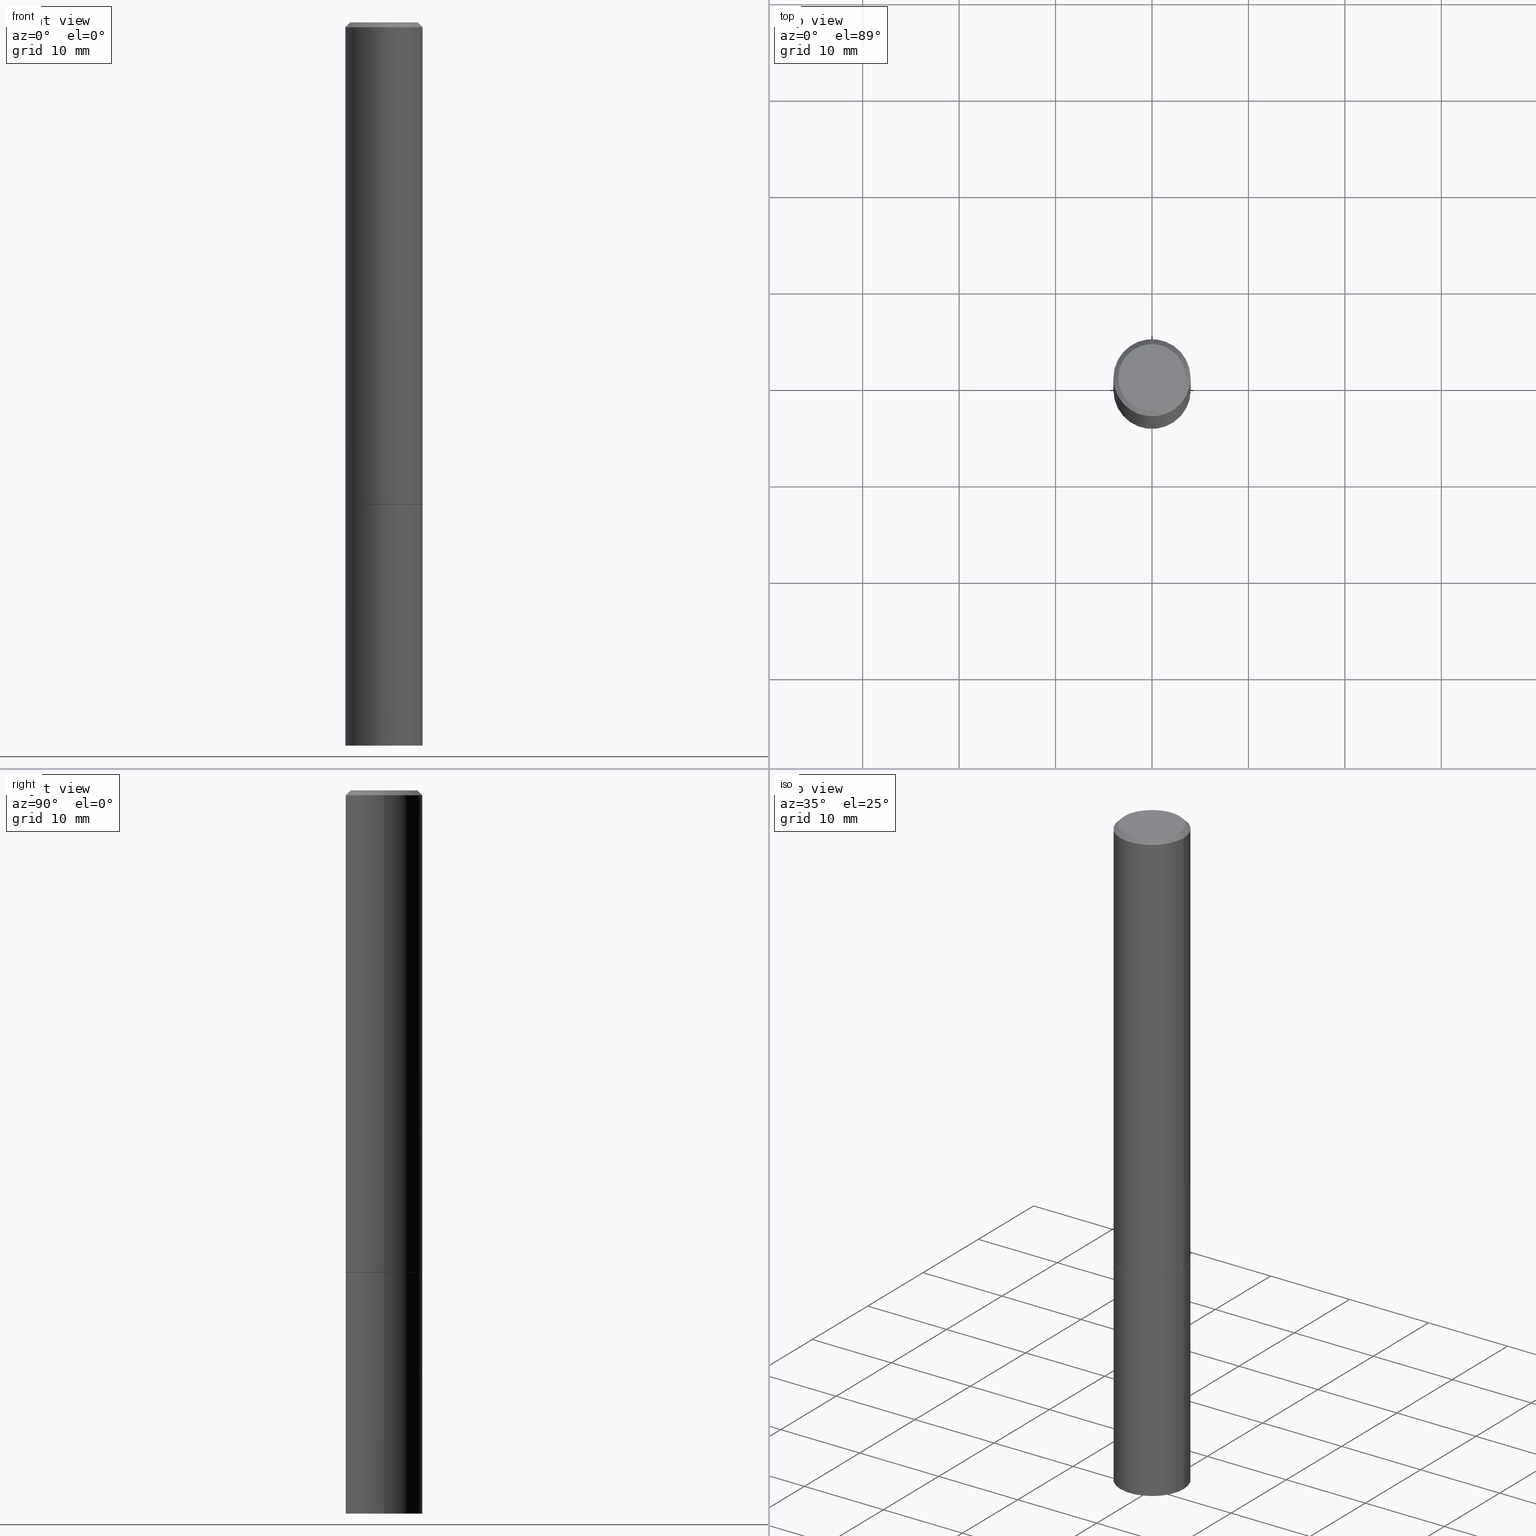
[diagram: canonical four-view strip — front | top / right | iso, engineering-drawing reading convention]
A machine part, canonical four-view strip (front | top / right | iso — engineering-drawing reading convention). The complete STEP part file that produces these views, byte-faithful:
ISO-10303-21;
HEADER;
FILE_DESCRIPTION (( 'STEP AP203' ),
    '1' );
FILE_NAME ('49392.STEP',
    '2024-02-28T18:36:48',
    ( '' ),
    ( '' ),
    'SwSTEP 2.0',
    'SolidWorks 2023',
    '' );
FILE_SCHEMA (( 'CONFIG_CONTROL_DESIGN' ));
ENDSEC;

DATA;
#1 = DIRECTION ( 'NONE',  ( 1.000000000000000000, -6.982962677686265922E-15, 4.876176775795935232E-29 ) ) ;
#2 = LOCAL_TIME ( 13, 36, 48.00000000000000000, #238 ) ;
#3 =( NAMED_UNIT ( * ) SI_UNIT ( $, .STERADIAN. ) SOLID_ANGLE_UNIT ( ) );
#4 = CARTESIAN_POINT ( 'NONE',  ( -0.1574999999999998901, 1.119104808822157012E-15, -7.747322767151471379E-30 ) ) ;
#5 = CIRCLE ( 'NONE', #82, 0.1565000000000000002 ) ;
#6 = VERTEX_POINT ( 'NONE', #175 ) ;
#7 = CARTESIAN_POINT ( 'NONE',  ( 1.099816621735634812E-15, 0.1574999999999931177, -1.968500000000000361 ) ) ;
#8 = CC_DESIGN_PERSON_AND_ORGANIZATION_ASSIGNMENT ( #245, #183, ( #179 ) ) ;
#9 = VERTEX_POINT ( 'NONE', #46 ) ;
#10 = CALENDAR_DATE ( 2024, 28, 2 ) ;
#11 = EDGE_CURVE ( 'NONE', #282, #355, #236, .T. ) ;
#12 = AXIS2_PLACEMENT_3D ( 'NONE', #243, #133, #357 ) ;
#13 = CARTESIAN_POINT ( 'NONE',  ( 4.890937612370280165E-31, -6.982962677686301470E-17, -0.02000000000000003164 ) ) ;
#14 = ORIENTED_EDGE ( 'NONE', *, *, #43, .T. ) ;
#15 = APPLICATION_PROTOCOL_DEFINITION ( 'international standard', 'config_control_design', 1994, #269 ) ;
#16 = FACE_OUTER_BOUND ( 'NONE', #204, .T. ) ;
#17 = APPROVAL_ROLE ( '' ) ;
#18 = VERTEX_POINT ( 'NONE', #74 ) ;
#19 = ADVANCED_FACE ( 'NONE', ( #16 ), #68, .T. ) ;
#20 = CLOSED_SHELL ( 'NONE', ( #165, #19, #235, #277, #317, #135, #280, #344 ) ) ;
#21 = AXIS2_PLACEMENT_3D ( 'NONE', #340, #167, #64 ) ;
#22 = CARTESIAN_POINT ( 'NONE',  ( 1.099816621735659069E-15, 0.1574999999999896760, -2.952800000000000313 ) ) ;
#23 = ORIENTED_EDGE ( 'NONE', *, *, #296, .F. ) ;
#24 = DATE_AND_TIME ( #10, #310 ) ;
#25 = CARTESIAN_POINT ( 'NONE',  ( 4.813905344975440714E-29, -6.872981015512730918E-15, -1.968499999999999694 ) ) ;
#26 = LINE ( 'NONE', #114, #40 ) ;
#27 = EDGE_CURVE ( 'NONE', #9, #42, #5, .T. ) ;
#28 = AXIS2_PLACEMENT_3D ( 'NONE', #22, #131, #337 ) ;
#29 = DIRECTION ( 'NONE',  ( 1.000000000000000000, -6.982962677686267499E-15, 0.000000000000000000 ) ) ;
#30 = CARTESIAN_POINT ( 'NONE',  ( 0.1575000000000000011, -1.140946271907162522E-14, -2.952799999999999869 ) ) ;
#31 = CIRCLE ( 'NONE', #239, 0.1575000000000000011 ) ;
#32 = AXIS2_PLACEMENT_3D ( 'NONE', #110, #213, #328 ) ;
#33 = EDGE_CURVE ( 'NONE', #6, #146, #216, .T. ) ;
#34 = AXIS2_PLACEMENT_3D ( 'NONE', #366, #335, #56 ) ;
#35 = FACE_OUTER_BOUND ( 'NONE', #71, .T. ) ;
#36 = EDGE_CURVE ( 'NONE', #282, #108, #193, .T. ) ;
#37 = CARTESIAN_POINT ( 'NONE',  ( 9.601573681818600950E-16, 0.1374999999999997891, -4.779444278458816091E-16 ) ) ;
#38 = DIRECTION ( 'NONE',  ( -2.445468806185136597E-29, 3.491481338843145583E-15, 1.000000000000000000 ) ) ;
#39 = VERTEX_POINT ( 'NONE', #152 ) ;
#40 = VECTOR ( 'NONE', #333, 39.37007874015748143 ) ;
#41 = AXIS2_PLACEMENT_3D ( 'NONE', #192, #188, #185 ) ;
#42 = VERTEX_POINT ( 'NONE', #262 ) ;
#43 = EDGE_CURVE ( 'NONE', #39, #6, #240, .T. ) ;
#44 = ORIENTED_EDGE ( 'NONE', *, *, #87, .F. ) ;
#45 = PERSON_AND_ORGANIZATION ( #53, #294 ) ;
#46 = CARTESIAN_POINT ( 'NONE',  ( 0.1565000000000000002, -7.965814674570632384E-15, -1.968499999999999694 ) ) ;
#47 = ORIENTED_EDGE ( 'NONE', *, *, #196, .T. ) ;
#48 = PERSON_AND_ORGANIZATION ( #53, #294 ) ;
#49 = ORIENTED_EDGE ( 'NONE', *, *, #120, .T. ) ;
#50 = VECTOR ( 'NONE', #313, 39.37007874015748143 ) ;
#51 = AXIS2_PLACEMENT_3D ( 'NONE', #169, #123, #227 ) ;
#52 = FACE_OUTER_BOUND ( 'NONE', #334, .T. ) ;
#53 = PERSON ( 'UNSPECIFIED', 'UNSPECIFIED', 'UNSPECIFIED', ('UNSPECIFIED'), ('UNSPECIFIED'), ('UNSPECIFIED') ) ;
#54 = PLANE ( 'NONE',  #302 ) ;
#55 = ORIENTED_EDGE ( 'NONE', *, *, #197, .F. ) ;
#56 = DIRECTION ( 'NONE',  ( 1.000000000000000000, -6.982962677686267499E-15, 4.876173381029107889E-29 ) ) ;
#57 = CARTESIAN_POINT ( 'NONE',  ( -0.1565000000000000002, -5.760981634048174323E-15, -1.968499999999999694 ) ) ;
#58 = ORIENTED_EDGE ( 'NONE', *, *, #303, .F. ) ;
#59 = APPLICATION_CONTEXT ( 'configuration controlled 3d designs of mechanical parts and assemblies' ) ;
#60 = DIRECTION ( 'NONE',  ( 0.000000000000000000, 0.000000000000000000, 1.000000000000000000 ) ) ;
#61 = CC_DESIGN_PERSON_AND_ORGANIZATION_ASSIGNMENT ( #159, #329, ( #162 ) ) ;
#62 = DIRECTION ( 'NONE',  ( -2.445468806185136597E-29, 3.491481338843145583E-15, 1.000000000000000000 ) ) ;
#63 = CIRCLE ( 'NONE', #345, 0.1565000000000000002 ) ;
#64 = DIRECTION ( 'NONE',  ( 1.000000000000000000, -6.982962677686266711E-15, 4.876176775795935793E-29 ) ) ;
#65 = APPROVAL_PERSON_ORGANIZATION ( #205, #81, #17 ) ;
#66 = CARTESIAN_POINT ( 'NONE',  ( 4.811459876169255671E-29, -6.869489534173887122E-15, -1.967499999999999805 ) ) ;
#67 = EDGE_LOOP ( 'NONE', ( #148, #104 ) ) ;
#68 = CYLINDRICAL_SURFACE ( 'NONE', #125, 0.1574999999999998901 ) ;
#69 = ORIENTED_EDGE ( 'NONE', *, *, #196, .F. ) ;
#70 = EDGE_CURVE ( 'NONE', #146, #6, #140, .T. ) ;
#71 = EDGE_LOOP ( 'NONE', ( #233, #314 ) ) ;
#72 = COORDINATED_UNIVERSAL_TIME_OFFSET ( 5, 0, .BEHIND. ) ;
#73 = CIRCLE ( 'NONE', #32, 0.1374999999999997891 ) ;
#74 = CARTESIAN_POINT ( 'NONE',  ( 0.1374999999999997891, -1.046838268059730914E-15, 4.268512490107428597E-18 ) ) ;
#75 = ORIENTED_EDGE ( 'NONE', *, *, #358, .F. ) ;
#76 = DATE_TIME_ROLE ( 'creation_date' ) ;
#77 = ORIENTED_EDGE ( 'NONE', *, *, #27, .T. ) ;
#78 = CARTESIAN_POINT ( 'NONE',  ( -0.1575000000000000011, -2.350554771653214846E-15, -1.967499999999999805 ) ) ;
#79 = ORIENTED_EDGE ( 'NONE', *, *, #36, .T. ) ;
#80 = CALENDAR_DATE ( 2024, 28, 2 ) ;
#81 = APPROVAL ( #319, 'UNSPECIFIED' ) ;
#82 = AXIS2_PLACEMENT_3D ( 'NONE', #258, #147, #95 ) ;
#83 = PRODUCT_DEFINITION ( 'UNKNOWN', '', #116, #129 ) ;
#84 = DIRECTION ( 'NONE',  ( -0.7071067811865232589, 7.493145998870265808E-15, 0.7071067811865715536 ) ) ;
#85 = CARTESIAN_POINT ( 'NONE',  ( 0.1574999999999997791, -1.150358061425877894E-15, -0.02000000000000003164 ) ) ;
#86 = LINE ( 'NONE', #248, #320 ) ;
#87 = EDGE_CURVE ( 'NONE', #259, #284, #31, .T. ) ;
#88 = CIRCLE ( 'NONE', #136, 0.1575000000000000011 ) ;
#89 = FACE_OUTER_BOUND ( 'NONE', #244, .T. ) ;
#90 = ADVANCED_FACE ( 'NONE', ( #35 ), #145, .F. ) ;
#91 = DIRECTION ( 'NONE',  ( -2.445468806185136877E-29, 3.491481338843145188E-15, 1.000000000000000000 ) ) ;
#92 = FACE_OUTER_BOUND ( 'NONE', #348, .T. ) ;
#93 = AXIS2_PLACEMENT_3D ( 'NONE', #272, #293, #1 ) ;
#94 = APPROVAL_PERSON_ORGANIZATION ( #48, #307, #186 ) ;
#95 = DIRECTION ( 'NONE',  ( 1.000000000000000000, -6.982962677686267499E-15, 0.000000000000000000 ) ) ;
#96 = AXIS2_PLACEMENT_3D ( 'NONE', #288, #200, #311 ) ;
#97 = CIRCLE ( 'NONE', #365, 0.1575000000000000011 ) ;
#98 = PERSON_AND_ORGANIZATION_ROLE ( 'creator' ) ;
#99 = EDGE_CURVE ( 'NONE', #39, #18, #301, .T. ) ;
#100 = ORIENTED_EDGE ( 'NONE', *, *, #202, .F. ) ;
#101 = ORIENTED_EDGE ( 'NONE', *, *, #33, .F. ) ;
#102 = COORDINATED_UNIVERSAL_TIME_OFFSET ( 5, 0, .BEHIND. ) ;
#103 = ORIENTED_EDGE ( 'NONE', *, *, #70, .T. ) ;
#104 = ORIENTED_EDGE ( 'NONE', *, *, #291, .F. ) ;
#105 = DATE_AND_TIME ( #211, #228 ) ;
#106 = CONICAL_SURFACE ( 'NONE', #12, 0.1574999999999997791, 0.7853981633974472798 ) ;
#107 = DIRECTION ( 'NONE',  ( -0.7071067811865467956, 2.468850131082249172E-15, -0.7071067811865482389 ) ) ;
#108 = VERTEX_POINT ( 'NONE', #163 ) ;
#109 = PERSON_AND_ORGANIZATION ( #53, #294 ) ;
#110 = CARTESIAN_POINT ( 'NONE',  ( -1.043851414335219820E-46, 1.490343170380447200E-32, 4.268512490100411279E-18 ) ) ;
#111 = CALENDAR_DATE ( 2024, 28, 2 ) ;
#112 = DIMENSIONAL_EXPONENTS ( 1.000000000000000000, 0.000000000000000000, 0.000000000000000000, 0.000000000000000000, 0.000000000000000000, 0.000000000000000000, 0.000000000000000000 ) ;
#113 = EDGE_CURVE ( 'NONE', #108, #182, #86, .T. ) ;
#114 = CARTESIAN_POINT ( 'NONE',  ( 0.1574999999999998901, -1.099816621735586297E-15, 7.679978421878593829E-30 ) ) ;
#115 = AXIS2_PLACEMENT_3D ( 'NONE', #137, #118, #219 ) ;
#116 = PRODUCT_DEFINITION_FORMATION_WITH_SPECIFIED_SOURCE ( 'ANY', '', #179, .NOT_KNOWN. ) ;
#117 = CYLINDRICAL_SURFACE ( 'NONE', #41, 0.1575000000000000011 ) ;
#118 = DIRECTION ( 'NONE',  ( -2.445468806185136597E-29, 3.491481338843145583E-15, 1.000000000000000000 ) ) ;
#119 = CARTESIAN_POINT ( 'NONE',  ( 0.1574999999999997791, -1.150358061425877894E-15, -0.02000000000000003164 ) ) ;
#120 = EDGE_CURVE ( 'NONE', #42, #9, #63, .T. ) ;
#121 = CARTESIAN_POINT ( 'NONE',  ( 0.000000000000000000, 0.000000000000000000, 0.000000000000000000 ) ) ;
#122 = DIRECTION ( 'NONE',  ( -1.000000000000000000, 6.982962677686265922E-15, -4.876176775795935793E-29 ) ) ;
#123 = DIRECTION ( 'NONE',  ( -2.445468806185136597E-29, 3.491481338843145583E-15, 1.000000000000000000 ) ) ;
#124 =( NAMED_UNIT ( * ) PLANE_ANGLE_UNIT ( ) SI_UNIT ( $, .RADIAN. ) );
#125 = AXIS2_PLACEMENT_3D ( 'NONE', #283, #38, #181 ) ;
#126 = CARTESIAN_POINT ( 'NONE',  ( 0.1575000000000000011, -7.969306155909475391E-15, -1.967499999999999805 ) ) ;
#127 = CC_DESIGN_APPROVAL ( #184, ( #83 ) ) ;
#128 = PERSON_AND_ORGANIZATION_ROLE ( 'design_supplier' ) ;
#129 = DESIGN_CONTEXT ( 'detailed design', #269, 'design' ) ;
#130 = ORIENTED_EDGE ( 'NONE', *, *, #113, .F. ) ;
#131 = DIRECTION ( 'NONE',  ( 2.438088387897960049E-29, -3.491481338843145188E-15, -1.000000000000000000 ) ) ;
#132 = ORIENTED_EDGE ( 'NONE', *, *, #255, .T. ) ;
#133 = DIRECTION ( 'NONE',  ( 2.445468806185136597E-29, -3.491481338843145583E-15, -1.000000000000000000 ) ) ;
#134 = CARTESIAN_POINT ( 'NONE',  ( 4.813905344975440714E-29, -6.872981015512730918E-15, -1.968499999999999694 ) ) ;
#135 = ADVANCED_FACE ( 'NONE', ( #361 ), #330, .T. ) ;
#136 = AXIS2_PLACEMENT_3D ( 'NONE', #134, #154, #195 ) ;
#137 = CARTESIAN_POINT ( 'NONE',  ( 4.813905344975440714E-29, -6.872981015512730918E-15, -1.968499999999999694 ) ) ;
#138 = FACE_OUTER_BOUND ( 'NONE', #208, .T. ) ;
#139 = CYLINDRICAL_SURFACE ( 'NONE', #21, 0.1574999999999998901 ) ;
#140 = CIRCLE ( 'NONE', #96, 0.1574999999999997791 ) ;
#141 = CIRCLE ( 'NONE', #51, 0.1575000000000000011 ) ;
#142 = CC_DESIGN_DATE_AND_TIME_ASSIGNMENT ( #234, #76, ( #83 ) ) ;
#143 = CIRCLE ( 'NONE', #343, 0.1575000000000000011 ) ;
#144 = ADVANCED_FACE ( 'NONE', ( #160 ), #117, .T. ) ;
#145 = PLANE ( 'NONE',  #292 ) ;
#146 = VERTEX_POINT ( 'NONE', #85 ) ;
#147 = DIRECTION ( 'NONE',  ( -2.445468806185136597E-29, 3.491481338843145583E-15, 1.000000000000000000 ) ) ;
#148 = ORIENTED_EDGE ( 'NONE', *, *, #36, .F. ) ;
#149 = DIRECTION ( 'NONE',  ( -2.445468806185136597E-29, 3.491481338843145583E-15, 1.000000000000000000 ) ) ;
#150 = ORIENTED_EDGE ( 'NONE', *, *, #358, .T. ) ;
#151 = DATE_TIME_ROLE ( 'classification_date' ) ;
#152 = CARTESIAN_POINT ( 'NONE',  ( -0.1374999999999997891, 9.950721815702913496E-16, 4.268512490093574228E-18 ) ) ;
#153 = EDGE_LOOP ( 'NONE', ( #100, #49, #155, #44 ) ) ;
#154 = DIRECTION ( 'NONE',  ( -2.445468806185136597E-29, 3.491481338843145583E-15, 1.000000000000000000 ) ) ;
#155 = ORIENTED_EDGE ( 'NONE', *, *, #308, .T. ) ;
#156 = CLOSED_SHELL ( 'NONE', ( #191, #230, #90, #144 ) ) ;
#157 = DIRECTION ( 'NONE',  ( 2.438088387897960049E-29, -3.491481338843145188E-15, -1.000000000000000000 ) ) ;
#158 = PRODUCT_RELATED_PRODUCT_CATEGORY ( 'detail', '', ( #179 ) ) ;
#159 = PERSON_AND_ORGANIZATION ( #53, #294 ) ;
#160 = FACE_OUTER_BOUND ( 'NONE', #178, .T. ) ;
#161 = DIRECTION ( 'NONE',  ( -2.445468806185136877E-29, 3.491481338843145188E-15, 1.000000000000000000 ) ) ;
#162 = SECURITY_CLASSIFICATION ( '', '', #214 ) ;
#163 = CARTESIAN_POINT ( 'NONE',  ( -0.1575000000000000011, -7.472208747602227514E-15, -2.952799999999999869 ) ) ;
#164 = MECHANICAL_CONTEXT ( 'NONE', #59, 'mechanical' ) ;
#165 = ADVANCED_FACE ( 'NONE', ( #138 ), #249, .T. ) ;
#166 = UNCERTAINTY_MEASURE_WITH_UNIT (LENGTH_MEASURE( 1.000000000000000082E-05 ), #225, 'distance_accuracy_value', 'NONE');
#167 = DIRECTION ( 'NONE',  ( -2.445468806185136597E-29, 3.491481338843145583E-15, 1.000000000000000000 ) ) ;
#168 = CC_DESIGN_SECURITY_CLASSIFICATION ( #162, ( #116 ) ) ;
#169 = CARTESIAN_POINT ( 'NONE',  ( 4.811459876169255671E-29, -6.869489534173887122E-15, -1.967499999999999805 ) ) ;
#170 = DIRECTION ( 'NONE',  ( 1.000000000000000000, -6.982962677686268288E-15, 0.000000000000000000 ) ) ;
#171 = DIRECTION ( 'NONE',  ( -2.445468806185136597E-29, 3.491481338843145583E-15, 1.000000000000000000 ) ) ;
#172 = ORIENTED_EDGE ( 'NONE', *, *, #11, .T. ) ;
#173 = EDGE_LOOP ( 'NONE', ( #75, #209, #47, #101 ) ) ;
#174 = VECTOR ( 'NONE', #331, 39.37007874015748143 ) ;
#175 = CARTESIAN_POINT ( 'NONE',  ( -0.1574999999999997791, 1.029986994958722604E-15, -0.02000000000000003164 ) ) ;
#176 = ORIENTED_EDGE ( 'NONE', *, *, #210, .T. ) ;
#177 = PERSON_AND_ORGANIZATION_ROLE ( 'creator' ) ;
#178 = EDGE_LOOP ( 'NONE', ( #130, #237, #172, #55 ) ) ;
#179 = PRODUCT ( '49392', '49392', '', ( #164 ) ) ;
#180 = APPROVAL_DATE_TIME ( #24, #184 ) ;
#181 = DIRECTION ( 'NONE',  ( 1.000000000000000000, -6.982962677686266711E-15, 4.876176775795935793E-29 ) ) ;
#182 = VERTEX_POINT ( 'NONE', #251 ) ;
#183 = PERSON_AND_ORGANIZATION_ROLE ( 'design_owner' ) ;
#184 = APPROVAL ( #349, 'UNSPECIFIED' ) ;
#185 = DIRECTION ( 'NONE',  ( 1.000000000000000000, -6.982962677686265922E-15, 4.876176775795935232E-29 ) ) ;
#186 = APPROVAL_ROLE ( '' ) ;
#187 = AXIS2_PLACEMENT_3D ( 'NONE', #268, #246, #215 ) ;
#188 = DIRECTION ( 'NONE',  ( -2.445468806185136597E-29, 3.491481338843145583E-15, 1.000000000000000000 ) ) ;
#189 = DIRECTION ( 'NONE',  ( 1.000000000000000000, -6.982962677686267499E-15, 0.000000000000000000 ) ) ;
#190 = CC_DESIGN_DATE_AND_TIME_ASSIGNMENT ( #290, #151, ( #162 ) ) ;
#191 = ADVANCED_FACE ( 'NONE', ( #218 ), #270, .T. ) ;
#192 = CARTESIAN_POINT ( 'NONE',  ( 0.000000000000000000, 0.000000000000000000, 0.000000000000000000 ) ) ;
#193 = CIRCLE ( 'NONE', #363, 0.1575000000000000011 ) ;
#194 = LOCAL_TIME ( 13, 36, 48.00000000000000000, #72 ) ;
#195 = DIRECTION ( 'NONE',  ( 1.000000000000000000, -6.982962677686268288E-15, 0.000000000000000000 ) ) ;
#196 = EDGE_CURVE ( 'NONE', #284, #146, #26, .T. ) ;
#197 = EDGE_CURVE ( 'NONE', #182, #355, #88, .T. ) ;
#198 = DIRECTION ( 'NONE',  ( -2.445468806185136597E-29, 3.491481338843145583E-15, 1.000000000000000000 ) ) ;
#199 =( LENGTH_UNIT ( ) NAMED_UNIT ( * ) SI_UNIT ( $, .METRE. ) );
#200 = DIRECTION ( 'NONE',  ( -2.445468806185136597E-29, 3.491481338843145583E-15, 1.000000000000000000 ) ) ;
#201 = ORIENTED_EDGE ( 'NONE', *, *, #43, .F. ) ;
#202 = EDGE_CURVE ( 'NONE', #42, #259, #297, .T. ) ;
#203 = ORIENTED_EDGE ( 'NONE', *, *, #202, .T. ) ;
#204 = EDGE_LOOP ( 'NONE', ( #359, #150, #318, #69 ) ) ;
#205 = PERSON_AND_ORGANIZATION ( #53, #294 ) ;
#206 = COORDINATED_UNIVERSAL_TIME_OFFSET ( 5, 0, .BEHIND. ) ;
#207 = DIRECTION ( 'NONE',  ( -2.445468806185136597E-29, 3.491481338843145583E-15, 1.000000000000000000 ) ) ;
#208 = EDGE_LOOP ( 'NONE', ( #77, #203, #23, #241 ) ) ;
#209 = ORIENTED_EDGE ( 'NONE', *, *, #87, .T. ) ;
#210 = EDGE_CURVE ( 'NONE', #18, #146, #300, .T. ) ;
#211 = CALENDAR_DATE ( 2024, 28, 2 ) ;
#212 = ADVANCED_BREP_SHAPE_REPRESENTATION ( '49392', ( #254, #265, #346 ), #353 ) ;
#213 = DIRECTION ( 'NONE',  ( -2.445468806185136597E-29, 3.491481338843145583E-15, 1.000000000000000000 ) ) ;
#214 = SECURITY_CLASSIFICATION_LEVEL ( 'unclassified' ) ;
#215 = DIRECTION ( 'NONE',  ( -1.000000000000000000, 6.982962677686266711E-15, 0.000000000000000000 ) ) ;
#216 = CIRCLE ( 'NONE', #275, 0.1574999999999997791 ) ;
#217 = CONICAL_SURFACE ( 'NONE', #187, 0.1574999999999997791, 0.7853981633974472798 ) ;
#218 = FACE_OUTER_BOUND ( 'NONE', #298, .T. ) ;
#219 = DIRECTION ( 'NONE',  ( 1.000000000000000000, -6.982962677686267499E-15, 0.000000000000000000 ) ) ;
#220 = DIRECTION ( 'NONE',  ( 2.438088387897960049E-29, -3.491481338843145188E-15, -1.000000000000000000 ) ) ;
#221 = PLANE ( 'NONE',  #28 ) ;
#222 = VECTOR ( 'NONE', #107, 39.37007874015748143 ) ;
#223 = LOCAL_TIME ( 13, 36, 48.00000000000000000, #206 ) ;
#224 = DIRECTION ( 'NONE',  ( 1.000000000000000000, 0.000000000000000000, 0.000000000000000000 ) ) ;
#225 =( CONVERSION_BASED_UNIT ( 'INCH', #305 ) LENGTH_UNIT ( ) NAMED_UNIT ( #112 ) );
#226 = CARTESIAN_POINT ( 'NONE',  ( 4.813905344975440714E-29, -6.872981015512730918E-15, -1.968499999999999694 ) ) ;
#227 = DIRECTION ( 'NONE',  ( 1.000000000000000000, -6.982962677686268288E-15, 0.000000000000000000 ) ) ;
#228 = LOCAL_TIME ( 13, 36, 48.00000000000000000, #260 ) ;
#229 = DIRECTION ( 'NONE',  ( 1.000000000000000000, -6.982962677686261977E-15, 0.000000000000000000 ) ) ;
#230 = ADVANCED_FACE ( 'NONE', ( #263 ), #221, .T. ) ;
#231 = VECTOR ( 'NONE', #336, 39.37007874015748854 ) ;
#232 = ORIENTED_EDGE ( 'NONE', *, *, #33, .T. ) ;
#233 = ORIENTED_EDGE ( 'NONE', *, *, #303, .T. ) ;
#234 = DATE_AND_TIME ( #111, #223 ) ;
#235 = ADVANCED_FACE ( 'NONE', ( #89 ), #106, .T. ) ;
#236 = LINE ( 'NONE', #256, #50 ) ;
#237 = ORIENTED_EDGE ( 'NONE', *, *, #291, .T. ) ;
#238 = COORDINATED_UNIVERSAL_TIME_OFFSET ( 5, 0, .BEHIND. ) ;
#239 = AXIS2_PLACEMENT_3D ( 'NONE', #66, #171, #281 ) ;
#240 = LINE ( 'NONE', #354, #222 ) ;
#241 = ORIENTED_EDGE ( 'NONE', *, *, #308, .F. ) ;
#242 = APPROVAL_ROLE ( '' ) ;
#243 = CARTESIAN_POINT ( 'NONE',  ( 4.890937612370280165E-31, -6.982962677686301470E-17, -0.02000000000000003164 ) ) ;
#244 = EDGE_LOOP ( 'NONE', ( #312, #176, #103, #201 ) ) ;
#245 = PERSON_AND_ORGANIZATION ( #53, #294 ) ;
#246 = DIRECTION ( 'NONE',  ( 2.445468806185136597E-29, -3.491481338843145583E-15, -1.000000000000000000 ) ) ;
#247 = CC_DESIGN_PERSON_AND_ORGANIZATION_ASSIGNMENT ( #109, #128, ( #116 ) ) ;
#248 = CARTESIAN_POINT ( 'NONE',  ( -0.1575000000000000011, 1.119104808822157801E-15, -7.747322767151475583E-30 ) ) ;
#249 = CONICAL_SURFACE ( 'NONE', #352, 0.1565000000000000002, 0.7853981633974141952 ) ;
#250 = CARTESIAN_POINT ( 'NONE',  ( 4.813905344975440714E-29, -6.872981015512730918E-15, -1.968499999999999694 ) ) ;
#251 = CARTESIAN_POINT ( 'NONE',  ( -0.1575000000000000011, -7.472208747602227514E-15, -1.968499999999999694 ) ) ;
#252 = DIRECTION ( 'NONE',  ( -2.438088387897960049E-29, 3.491481338843145188E-15, 1.000000000000000000 ) ) ;
#253 = DIRECTION ( 'NONE',  ( 1.000000000000000000, -6.982962677686265922E-15, 4.876176775795935793E-29 ) ) ;
#254 = MANIFOLD_SOLID_BREP ( 'Body-Move/Copy2[1]', #156 ) ;
#255 = EDGE_CURVE ( 'NONE', #18, #39, #73, .T. ) ;
#256 = CARTESIAN_POINT ( 'NONE',  ( 0.1575000000000000011, -1.099816621735586889E-15, 7.679978421878598033E-30 ) ) ;
#257 = FACE_OUTER_BOUND ( 'NONE', #173, .T. ) ;
#258 = CARTESIAN_POINT ( 'NONE',  ( 4.813905344975440714E-29, -6.872981015512730918E-15, -1.968499999999999694 ) ) ;
#259 = VERTEX_POINT ( 'NONE', #78 ) ;
#260 = COORDINATED_UNIVERSAL_TIME_OFFSET ( 5, 0, .BEHIND. ) ;
#261 = APPROVAL_STATUS ( 'not_yet_approved' ) ;
#262 = CARTESIAN_POINT ( 'NONE',  ( -0.1565000000000000002, -5.755683179699951921E-15, -1.968499999999999694 ) ) ;
#263 = FACE_OUTER_BOUND ( 'NONE', #67, .T. ) ;
#264 = CC_DESIGN_APPROVAL ( #307, ( #162 ) ) ;
#265 = MANIFOLD_SOLID_BREP ( 'Body-Move/Copy2[2]', #20 ) ;
#266 = ORIENTED_EDGE ( 'NONE', *, *, #99, .T. ) ;
#267 = CC_DESIGN_PERSON_AND_ORGANIZATION_ASSIGNMENT ( #360, #98, ( #83 ) ) ;
#268 = CARTESIAN_POINT ( 'NONE',  ( 4.890937612370280165E-31, -6.982962677686301470E-17, -0.02000000000000003164 ) ) ;
#269 = APPLICATION_CONTEXT ( 'configuration controlled 3d designs of mechanical parts and assemblies' ) ;
#270 = CYLINDRICAL_SURFACE ( 'NONE', #93, 0.1575000000000000011 ) ;
#271 = DIRECTION ( 'NONE',  ( -2.445468806185136597E-29, 3.491481338843145583E-15, 1.000000000000000000 ) ) ;
#272 = CARTESIAN_POINT ( 'NONE',  ( 0.000000000000000000, 0.000000000000000000, 0.000000000000000000 ) ) ;
#273 = PLANE ( 'NONE',  #279 ) ;
#274 = CARTESIAN_POINT ( 'NONE',  ( 7.220980290903470182E-29, -1.030964609733603853E-14, -2.952799999999999869 ) ) ;
#275 = AXIS2_PLACEMENT_3D ( 'NONE', #13, #207, #285 ) ;
#276 = APPROVAL_PERSON_ORGANIZATION ( #323, #184, #242 ) ;
#277 = ADVANCED_FACE ( 'NONE', ( #52 ), #217, .T. ) ;
#278 = CARTESIAN_POINT ( 'NONE',  ( 0.1575000000000000011, -7.972797637248318399E-15, -1.968499999999999694 ) ) ;
#279 = AXIS2_PLACEMENT_3D ( 'NONE', #37, #220, #122 ) ;
#280 = ADVANCED_FACE ( 'NONE', ( #295 ), #54, .F. ) ;
#281 = DIRECTION ( 'NONE',  ( 1.000000000000000000, -6.982962677686268288E-15, 0.000000000000000000 ) ) ;
#282 = VERTEX_POINT ( 'NONE', #30 ) ;
#283 = CARTESIAN_POINT ( 'NONE',  ( 0.000000000000000000, 0.000000000000000000, 0.000000000000000000 ) ) ;
#284 = VERTEX_POINT ( 'NONE', #126 ) ;
#285 = DIRECTION ( 'NONE',  ( 1.000000000000000000, -6.982962677686266711E-15, 0.000000000000000000 ) ) ;
#286 = ORIENTED_EDGE ( 'NONE', *, *, #99, .F. ) ;
#287 = DIRECTION ( 'NONE',  ( 1.000000000000000000, -6.982962677686261977E-15, 0.000000000000000000 ) ) ;
#288 = CARTESIAN_POINT ( 'NONE',  ( 4.890937612370280165E-31, -6.982962677686301470E-17, -0.02000000000000003164 ) ) ;
#289 = ORIENTED_EDGE ( 'NONE', *, *, #210, .F. ) ;
#290 = DATE_AND_TIME ( #80, #2 ) ;
#291 = EDGE_CURVE ( 'NONE', #108, #282, #143, .T. ) ;
#292 = AXIS2_PLACEMENT_3D ( 'NONE', #7, #157, #304 ) ;
#293 = DIRECTION ( 'NONE',  ( -2.445468806185136597E-29, 3.491481338843145583E-15, 1.000000000000000000 ) ) ;
#294 = ORGANIZATION ( 'UNSPECIFIED', 'UNSPECIFIED', '' ) ;
#295 = FACE_OUTER_BOUND ( 'NONE', #322, .T. ) ;
#296 = EDGE_CURVE ( 'NONE', #284, #259, #141, .T. ) ;
#297 = LINE ( 'NONE', #57, #342 ) ;
#298 = EDGE_LOOP ( 'NONE', ( #79, #325, #58, #326 ) ) ;
#299 = CARTESIAN_POINT ( 'NONE',  ( 0.1565000000000000002, -7.965814674570632384E-15, -1.968499999999999694 ) ) ;
#300 = LINE ( 'NONE', #119, #174 ) ;
#301 = CIRCLE ( 'NONE', #34, 0.1374999999999997891 ) ;
#302 = AXIS2_PLACEMENT_3D ( 'NONE', #226, #252, #253 ) ;
#303 = EDGE_CURVE ( 'NONE', #355, #182, #97, .T. ) ;
#304 = DIRECTION ( 'NONE',  ( -1.000000000000000000, 6.982962677686265922E-15, -4.876176775795935793E-29 ) ) ;
#305 = LENGTH_MEASURE_WITH_UNIT ( LENGTH_MEASURE( 0.02539999999999999897 ), #199 );
#306 = CC_DESIGN_PERSON_AND_ORGANIZATION_ASSIGNMENT ( #45, #177, ( #116 ) ) ;
#307 = APPROVAL ( #261, 'UNSPECIFIED' ) ;
#308 = EDGE_CURVE ( 'NONE', #9, #284, #362, .T. ) ;
#309 = VECTOR ( 'NONE', #91, 39.37007874015748143 ) ;
#310 = LOCAL_TIME ( 13, 36, 48.00000000000000000, #102 ) ;
#311 = DIRECTION ( 'NONE',  ( 1.000000000000000000, -6.982962677686266711E-15, 0.000000000000000000 ) ) ;
#312 = ORIENTED_EDGE ( 'NONE', *, *, #255, .F. ) ;
#313 = DIRECTION ( 'NONE',  ( -2.445468806185136877E-29, 3.491481338843145188E-15, 1.000000000000000000 ) ) ;
#314 = ORIENTED_EDGE ( 'NONE', *, *, #197, .T. ) ;
#315 = APPROVAL_DATE_TIME ( #351, #81 ) ;
#316 = ORIENTED_EDGE ( 'NONE', *, *, #27, .F. ) ;
#317 = ADVANCED_FACE ( 'NONE', ( #257 ), #139, .T. ) ;
#318 = ORIENTED_EDGE ( 'NONE', *, *, #70, .F. ) ;
#319 = APPROVAL_STATUS ( 'not_yet_approved' ) ;
#320 = VECTOR ( 'NONE', #161, 39.37007874015748143 ) ;
#321 = CARTESIAN_POINT ( 'NONE',  ( 7.220980290903470182E-29, -1.030964609733603853E-14, -2.952799999999999869 ) ) ;
#322 = EDGE_LOOP ( 'NONE', ( #316, #350 ) ) ;
#323 = PERSON_AND_ORGANIZATION ( #53, #294 ) ;
#324 = PRODUCT_DEFINITION_SHAPE ( 'NONE', 'NONE',  #83 ) ;
#325 = ORIENTED_EDGE ( 'NONE', *, *, #113, .T. ) ;
#326 = ORIENTED_EDGE ( 'NONE', *, *, #11, .F. ) ;
#327 = SHAPE_DEFINITION_REPRESENTATION ( #324, #212 ) ;
#328 = DIRECTION ( 'NONE',  ( 1.000000000000000000, -6.982962677686267499E-15, 4.876173381029107889E-29 ) ) ;
#329 = PERSON_AND_ORGANIZATION_ROLE ( 'classification_officer' ) ;
#330 = CONICAL_SURFACE ( 'NONE', #115, 0.1565000000000000002, 0.7853981633974141952 ) ;
#331 = DIRECTION ( 'NONE',  ( 0.7071067811865467956, -7.319954787623254468E-15, -0.7071067811865482389 ) ) ;
#332 = CC_DESIGN_APPROVAL ( #81, ( #116 ) ) ;
#333 = DIRECTION ( 'NONE',  ( -2.445468806185136877E-29, 3.491481338843145188E-15, 1.000000000000000000 ) ) ;
#334 = EDGE_LOOP ( 'NONE', ( #289, #286, #14, #232 ) ) ;
#335 = DIRECTION ( 'NONE',  ( -2.445468806185136597E-29, 3.491481338843145583E-15, 1.000000000000000000 ) ) ;
#336 = DIRECTION ( 'NONE',  ( 0.7071067811865232589, -2.468850131082003836E-15, 0.7071067811865715536 ) ) ;
#337 = DIRECTION ( 'NONE',  ( -1.000000000000000000, 6.982962677686265922E-15, -4.876176775795935793E-29 ) ) ;
#338 = LINE ( 'NONE', #4, #309 ) ;
#339 = APPLICATION_PROTOCOL_DEFINITION ( 'international standard', 'config_control_design', 1994, #59 ) ;
#340 = CARTESIAN_POINT ( 'NONE',  ( 0.000000000000000000, 0.000000000000000000, 0.000000000000000000 ) ) ;
#341 = CARTESIAN_POINT ( 'NONE',  ( 4.813905344975440714E-29, -6.872981015512730918E-15, -1.968499999999999694 ) ) ;
#342 = VECTOR ( 'NONE', #84, 39.37007874015748854 ) ;
#343 = AXIS2_PLACEMENT_3D ( 'NONE', #274, #62, #229 ) ;
#344 = ADVANCED_FACE ( 'NONE', ( #92 ), #273, .F. ) ;
#345 = AXIS2_PLACEMENT_3D ( 'NONE', #250, #271, #29 ) ;
#346 = AXIS2_PLACEMENT_3D ( 'NONE', #121, #60, #224 ) ;
#347 = CALENDAR_DATE ( 2024, 28, 2 ) ;
#348 = EDGE_LOOP ( 'NONE', ( #266, #132 ) ) ;
#349 = APPROVAL_STATUS ( 'not_yet_approved' ) ;
#350 = ORIENTED_EDGE ( 'NONE', *, *, #120, .F. ) ;
#351 = DATE_AND_TIME ( #347, #194 ) ;
#352 = AXIS2_PLACEMENT_3D ( 'NONE', #25, #364, #189 ) ;
#353 =( GEOMETRIC_REPRESENTATION_CONTEXT ( 3 ) GLOBAL_UNCERTAINTY_ASSIGNED_CONTEXT ( ( #166 ) ) GLOBAL_UNIT_ASSIGNED_CONTEXT ( ( #225, #124, #3 ) ) REPRESENTATION_CONTEXT ( 'NONE', 'WORKASPACE' ) );
#354 = CARTESIAN_POINT ( 'NONE',  ( -0.1574999999999997791, 1.029986994958722604E-15, -0.02000000000000003164 ) ) ;
#355 = VERTEX_POINT ( 'NONE', #278 ) ;
#356 = APPROVAL_DATE_TIME ( #105, #307 ) ;
#357 = DIRECTION ( 'NONE',  ( -1.000000000000000000, 6.982962677686266711E-15, 0.000000000000000000 ) ) ;
#358 = EDGE_CURVE ( 'NONE', #259, #6, #338, .T. ) ;
#359 = ORIENTED_EDGE ( 'NONE', *, *, #296, .T. ) ;
#360 = PERSON_AND_ORGANIZATION ( #53, #294 ) ;
#361 = FACE_OUTER_BOUND ( 'NONE', #153, .T. ) ;
#362 = LINE ( 'NONE', #299, #231 ) ;
#363 = AXIS2_PLACEMENT_3D ( 'NONE', #321, #149, #287 ) ;
#364 = DIRECTION ( 'NONE',  ( -2.445468806185136597E-29, 3.491481338843145583E-15, 1.000000000000000000 ) ) ;
#365 = AXIS2_PLACEMENT_3D ( 'NONE', #341, #198, #170 ) ;
#366 = CARTESIAN_POINT ( 'NONE',  ( -1.043851414335219820E-46, 1.490343170380447200E-32, 4.268512490100411279E-18 ) ) ;
ENDSEC;
END-ISO-10303-21;
